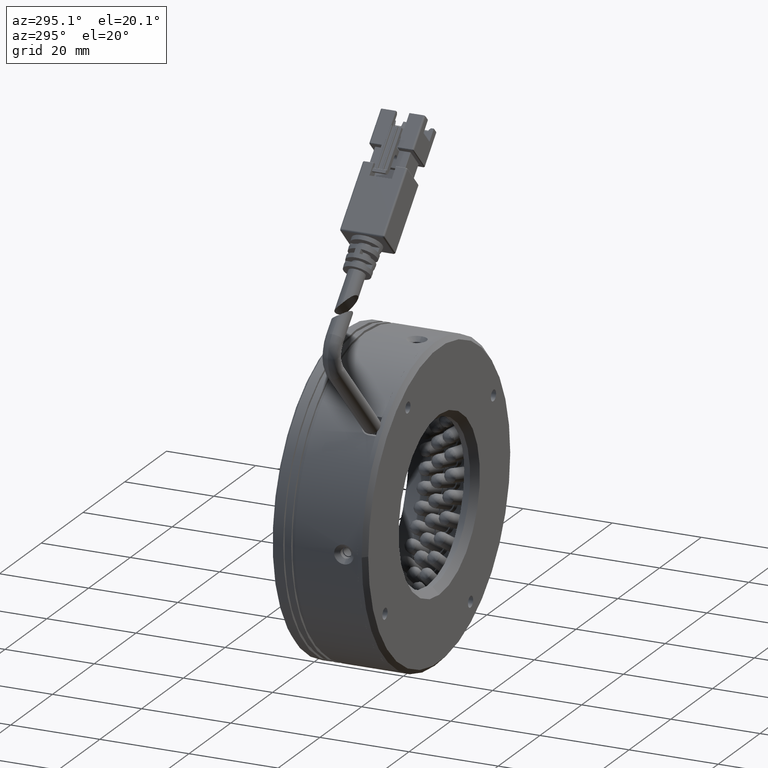
[diagram: clean part render]
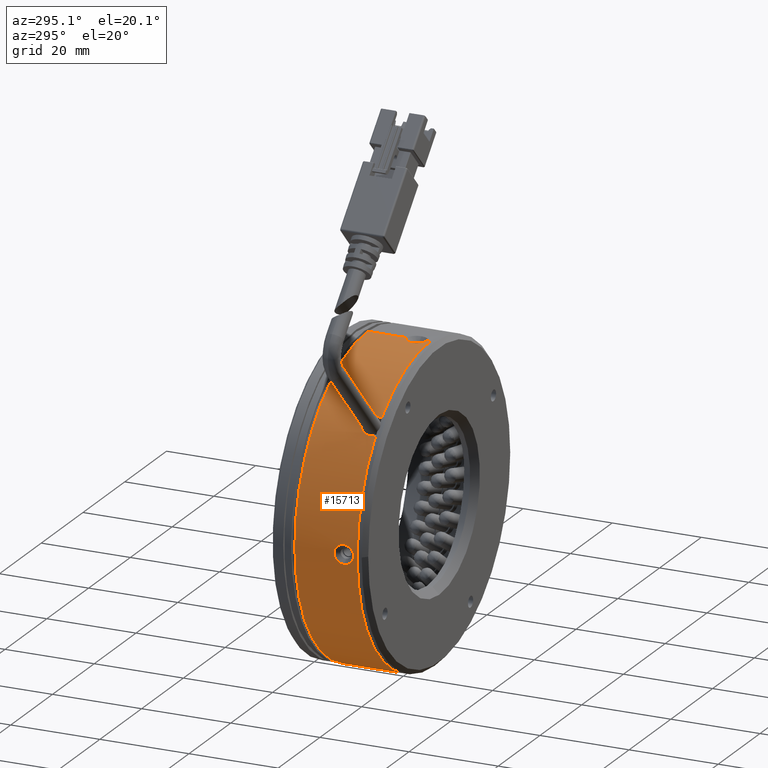
[diagram: same view with one face highlighted and labeled with its STEP entity id]
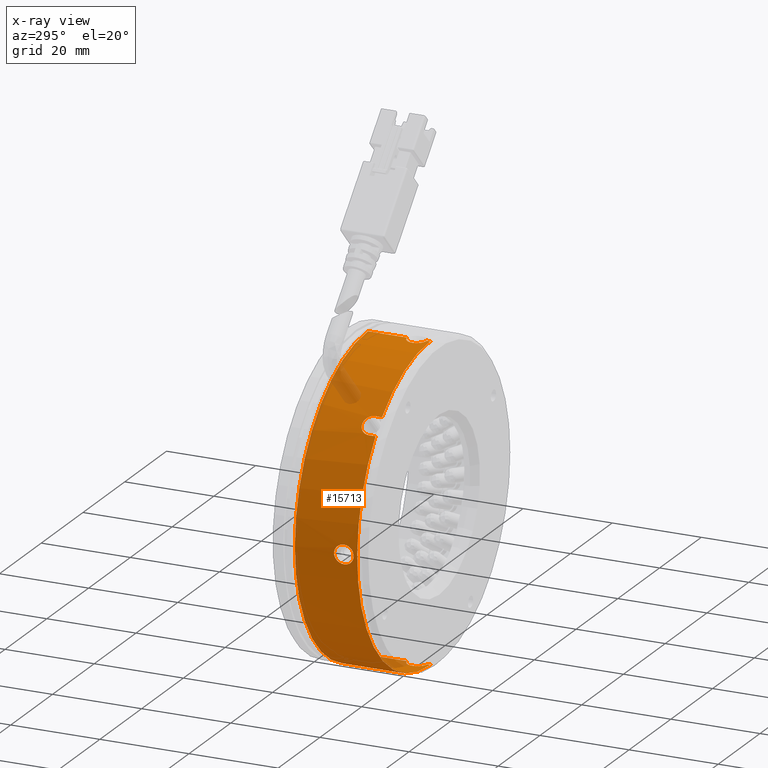
[diagram: x-ray of the same camera — body ghosted, the highlighted face saturated]
A machine part, auxiliary view. The second image highlights one B-rep face of the part: STEP entity #15713.
The next image is the same camera in x-ray: the body ghosted, the highlighted face saturated — about 4% of this face is hidden behind the body in this view.
In plain terms, the highlighted cylindrical surface (partial cylindrical patch) has radius 35 mm, axis along (-0, -1, -0).
Its self-contained STEP definition (entity closure, byte-faithful):
#307 = CIRCLE ( 'NONE', #38883, 35.00000000000000000 ) ;
#2027 = VERTEX_POINT ( 'NONE', #20053 ) ;
#2075 = CARTESIAN_POINT ( 'NONE',  ( -72.17441359463730100, -20.64720504933453800, -14.96197346467865000 ) ) ;
#2096 = CARTESIAN_POINT ( 'NONE',  ( -72.18648179265486000, -23.17893845901557300, -11.48444872106112900 ) ) ;
#2424 = FACE_OUTER_BOUND ( 'NONE', #57819, .T. ) ;
#2437 = CARTESIAN_POINT ( 'NONE',  ( -72.21092947146236400, -19.76496629095659700, -12.14565423040928100 ) ) ;
#2453 = AXIS2_PLACEMENT_3D ( 'NONE', #56706, #8599, #64789 ) ;
#2454 = CARTESIAN_POINT ( 'NONE',  ( -72.19933629333510800, -23.47771404082590500, -14.41495698983122500 ) ) ;
#2468 = AXIS2_PLACEMENT_3D ( 'NONE', #69287, #13562, #61974 ) ;
#2745 = CARTESIAN_POINT ( 'NONE',  ( -38.84195110853836800, -23.17868428264803200, -48.06513385898462300 ) ) ;
#3226 = CARTESIAN_POINT ( 'NONE',  ( -39.14754193227397400, -20.77298257262449300, 21.84470323132021700 ) ) ;
#3754 = CARTESIAN_POINT ( 'NONE',  ( -37.22376356038466100, -10.73693679055960500, -48.10242548495532600 ) ) ;
#3826 = CARTESIAN_POINT ( 'NONE',  ( -63.41989359537929300, -22.62648436212026200, 10.10885547354302400 ) ) ;
#4084 = CARTESIAN_POINT ( 'NONE',  ( -39.09538724856667400, -20.64163448882672100, -48.05250323419785700 ) ) ;
#4180 = CARTESIAN_POINT ( 'NONE',  ( -61.77115033680624400, -21.05066216474871500, 11.84642374056994600 ) ) ;
#4523 = CARTESIAN_POINT ( 'NONE',  ( -60.39311792706755000, -22.90058625625215100, 13.13079438471443400 ) ) ;
#4581 = CARTESIAN_POINT ( 'NONE',  ( -39.35859563401581300, -21.73693679055961100, -48.03725755865213600 ) ) ;
#4617 = VERTEX_POINT ( 'NONE', #67498 ) ;
#4725 = CARTESIAN_POINT ( 'NONE',  ( -37.92225923372046700, -23.82081558900806300, 21.89084473604073000 ) ) ;
#4752 = LINE ( 'NONE', #12790, #23563 ) ;
#5141 = B_SPLINE_CURVE_WITH_KNOTS ( 'NONE', 3,
 ( #17902, #25990, #82035, #34065, #90080, #42131, #98203, #50133, #2096, #58226, #10118, #66318, #18241, #74340, #26332, #82386, #34419, #90420, #42482, #98543, #50486, #2454, #58582, #10483, #66665, #18575, #74689, #26681, #82709, #34769 ),
 .UNSPECIFIED., .F., .F.,
 ( 4, 2, 2, 2, 2, 2, 2, 2, 2, 2, 2, 2, 2, 2, 4 ),
 ( 0.006801280354337099400, 0.007226328082486637900, 0.007651375810636176400, 0.008076423538785714900, 0.008501471266935253400, 0.009351566723234333900, 0.009776614451383877600, 0.01020166217953342100, 0.01062670990768296500, 0.01105175763583251100, 0.01147680536398205200, 0.01190185309213159800, 0.01232690082028114000, 0.01275194854843068500, 0.01360204400472976200 ),
 .UNSPECIFIED. ) ;
#5630 = DIRECTION ( 'NONE',  ( 0.0000000000000000000, 0.0000000000000000000, -1.000000000000000000 ) ) ;
#8599 = DIRECTION ( 'NONE',  ( 0.0000000000000000000, 1.000000000000000000, 0.0000000000000000000 ) ) ;
#9187 = LINE ( 'NONE', #62590, #28086 ) ;
#10100 = CARTESIAN_POINT ( 'NONE',  ( -72.18648179265486000, -20.29493512210366600, -14.72040224884976200 ) ) ;
#10101 = EDGE_CURVE ( 'NONE', #75327, #34255, #29644, .T. ) ;
#10118 = CARTESIAN_POINT ( 'NONE',  ( -72.20782325663832100, -23.65190471292516600, -12.01498249379077500 ) ) ;
#10465 = CARTESIAN_POINT ( 'NONE',  ( -72.19933629333510800, -19.99615954029330600, -11.78989398007965800 ) ) ;
#10483 = CARTESIAN_POINT ( 'NONE',  ( -72.18648156479508800, -23.17898133300633700, -14.72045267900322300 ) ) ;
#10767 = CARTESIAN_POINT ( 'NONE',  ( -38.31161495567856400, -23.65164852666222100, -48.08647185689260100 ) ) ;
#11013 = CIRCLE ( 'NONE', #2453, 35.00000000000000000 ) ;
#11183 = ORIENTED_EDGE ( 'NONE', *, *, #10101, .T. ) ;
#11216 = CARTESIAN_POINT ( 'NONE',  ( -38.93063235117443100, -20.40818297352575400, 21.85601341816057500 ) ) ;
#11820 = CARTESIAN_POINT ( 'NONE',  ( -63.31787781798403400, -22.22783951909080700, 10.22353156421552400 ) ) ;
#12060 = CARTESIAN_POINT ( 'NONE',  ( -39.29202359342004100, -21.17380952898742300, -48.04127219266198500 ) ) ;
#12160 = CARTESIAN_POINT ( 'NONE',  ( -61.47508772277452500, -21.14476724911269300, 12.13426606671402100 ) ) ;
#12526 = CARTESIAN_POINT ( 'NONE',  ( -60.38208398864672700, -23.18693679055961000, 13.14052013747701200 ) ) ;
#12749 = CARTESIAN_POINT ( 'NONE',  ( -38.30506477950060400, -23.63920736627007500, 21.88106210217100800 ) ) ;
#12790 = CARTESIAN_POINT ( 'NONE',  ( -60.38208398864672000, -10.10550973775694800, 13.14052013747701200 ) ) ;
#13023 = VECTOR ( 'NONE', #63215, 1000.000000000000000 ) ;
#13062 = VERTEX_POINT ( 'NONE', #64129 ) ;
#13562 = DIRECTION ( 'NONE',  ( -0.0000000000000000000, -1.000000000000000000, -0.0000000000000000000 ) ) ;
#15117 = CARTESIAN_POINT ( 'NONE',  ( -37.22376356038466100, -10.10550973775694800, -48.10242548495532600 ) ) ;
#15556 = VERTEX_POINT ( 'NONE', #100567 ) ;
#15713 = ADVANCED_FACE ( 'NONE', ( #2424, #45114 ), #35072, .T. ) ;
#15893 = VECTOR ( 'NONE', #23511, 1000.000000000000000 ) ;
#17770 = CARTESIAN_POINT ( 'NONE',  ( -37.22376356038465400, -10.10550973775694800, 21.89757451504468500 ) ) ;
#17884 = CARTESIAN_POINT ( 'NONE',  ( -72.15859563407818200, -21.73693679055961100, -15.23725755864029100 ) ) ;
#17902 = CARTESIAN_POINT ( 'NONE',  ( -72.15859563407819600, -21.73693679055961100, -10.96759341127059500 ) ) ;
#18230 = CARTESIAN_POINT ( 'NONE',  ( -72.20782325663830600, -19.82196886819406200, -14.18986847612012000 ) ) ;
#18241 = CARTESIAN_POINT ( 'NONE',  ( -72.21951787287260100, -23.86414038986979200, -12.53979157595876400 ) ) ;
#18553 = CARTESIAN_POINT ( 'NONE',  ( -72.18648156479511600, -20.29489224811288400, -11.48439829090766500 ) ) ;
#18575 = CARTESIAN_POINT ( 'NONE',  ( -72.17449339993608200, -22.82934489499319500, -14.96047259074914700 ) ) ;
#18645 = EDGE_CURVE ( 'NONE', #74708, #71007, #97765, .T. ) ;
#18750 = VERTEX_POINT ( 'NONE', #35741 ) ;
#18837 = LINE ( 'NONE', #17770, #59020 ) ;
#18845 = CARTESIAN_POINT ( 'NONE',  ( -37.78718050045571900, -23.86394007930558900, -48.09816826886805800 ) ) ;
#19288 = EDGE_CURVE ( 'NONE', #4617, #75763, #4752, .T. ) ;
#19312 = CARTESIAN_POINT ( 'NONE',  ( -38.54970370794844600, -19.98943390663248800, 21.87299322417172600 ) ) ;
#19830 = CARTESIAN_POINT ( 'NONE',  ( -37.36691250540036400, -19.53693679062509500, -48.10242548495533300 ) ) ;
#19922 = CARTESIAN_POINT ( 'NONE',  ( -63.16560618559595500, -21.86996423252865500, 10.39283354219874600 ) ) ;
#20053 = CARTESIAN_POINT ( 'NONE',  ( -37.22376356038466100, -24.73693679055960400, -48.10242548495532600 ) ) ;
#20134 = ORIENTED_EDGE ( 'NONE', *, *, #70124, .T. ) ;
#20171 = CARTESIAN_POINT ( 'NONE',  ( -39.35859563401586300, -21.59390286582536000, -48.03725755865214400 ) ) ;
#20266 = CARTESIAN_POINT ( 'NONE',  ( -61.19195739857615700, -21.31782239801181700, 12.40325299526902800 ) ) ;
#20387 = EDGE_CURVE ( 'NONE', #21367, #4617, #25909, .T. ) ;
#20852 = CARTESIAN_POINT ( 'NONE',  ( -38.64674033459720400, -23.38288011401085200, 21.86877216067218300 ) ) ;
#21367 = VERTEX_POINT ( 'NONE', #59066 ) ;
#22346 = ORIENTED_EDGE ( 'NONE', *, *, #57244, .T. ) ;
#22586 = DIRECTION ( 'NONE',  ( -0.0000000000000000000, -1.000000000000000000, -0.0000000000000000000 ) ) ;
#23005 = EDGE_CURVE ( 'NONE', #80723, #13062, #50048, .T. ) ;
#23511 = DIRECTION ( 'NONE',  ( 0.0000000000000000000, 1.000000000000000000, 0.0000000000000000000 ) ) ;
#23563 = VECTOR ( 'NONE', #37019, 1000.000000000000000 ) ;
#23602 = EDGE_CURVE ( 'NONE', #75763, #15556, #11013, .T. ) ;
#25399 = DIRECTION ( 'NONE',  ( -0.0000000000000000000, -1.000000000000000000, -0.0000000000000000000 ) ) ;
#25433 = ORIENTED_EDGE ( 'NONE', *, *, #46180, .T. ) ;
#25909 = B_SPLINE_CURVE_WITH_KNOTS ( 'NONE', 3,
 ( #35756, #99913, #51840, #3826, #59921, #11820, #67969, #19922, #76017, #28022, #84089, #36098, #92115, #44145, #100248, #52188, #4180, #60267, #12160, #68312, #20266, #76366, #28364, #84447, #36430, #92463, #44487, #100600, #52525, #4523, #60613, #12526 ),
 .UNSPECIFIED., .F., .F.,
 ( 4, 2, 2, 2, 2, 2, 2, 2, 2, 2, 2, 2, 2, 2, 2, 4 ),
 ( 3.469446951953614200E-018, 0.0004232750302415223700, 0.0008465500604830412700, 0.001269825090724560100, 0.001693100120966079100, 0.002539650181449116600, 0.002962925211690648900, 0.003386200241932181600, 0.003809475272173714200, 0.004232750302415246000, 0.004656025332656779100, 0.005079300362898311400, 0.005502575393139844500, 0.005925850423381375800, 0.006349125453622908900, 0.006772400483864441200 ),
 .UNSPECIFIED. ) ;
#25990 = CARTESIAN_POINT ( 'NONE',  ( -72.15859563407821000, -21.88003493872553000, -10.96759341127066500 ) ) ;
#26312 = CARTESIAN_POINT ( 'NONE',  ( -72.21951787287260100, -19.60973319124941800, -13.66505939395210800 ) ) ;
#26332 = CARTESIAN_POINT ( 'NONE',  ( -72.22375430103278400, -23.93678022324023800, -12.95856684094554900 ) ) ;
#26623 = CARTESIAN_POINT ( 'NONE',  ( -39.34516963937911500, -22.02117359424328000, -48.03808553797249200 ) ) ;
#26661 = CARTESIAN_POINT ( 'NONE',  ( -72.17449339993611100, -20.64452868612601900, -11.24437837916172900 ) ) ;
#26681 = CARTESIAN_POINT ( 'NONE',  ( -72.16204772927716200, -22.30695549506004800, -15.18262245712239400 ) ) ;
#26832 = EDGE_CURVE ( 'NONE', #36702, #75327, #96259, .T. ) ;
#26970 = CARTESIAN_POINT ( 'NONE',  ( -37.36693760260142500, -23.93693679049722100, -48.10242548494799300 ) ) ;
#27083 = CARTESIAN_POINT ( 'NONE',  ( -39.35859563401579900, -21.59386895970070000, 21.83240658874150600 ) ) ;
#27414 = CARTESIAN_POINT ( 'NONE',  ( -37.92368686113864100, -19.65360307949746500, 21.89081440042952000 ) ) ;
#27846 = AXIS2_PLACEMENT_3D ( 'NONE', #30141, #86229, #38206 ) ;
#27916 = CARTESIAN_POINT ( 'NONE',  ( -37.78478417546927700, -19.60932852830506700, -48.09820310293105200 ) ) ;
#28022 = CARTESIAN_POINT ( 'NONE',  ( -62.89871526194900000, -21.46354957633663900, 10.68491687128340800 ) ) ;
#28086 = VECTOR ( 'NONE', #22586, 1000.000000000000000 ) ;
#28364 = CARTESIAN_POINT ( 'NONE',  ( -60.93815582973164200, -21.56033681113305900, 12.63933173385570400 ) ) ;
#28907 = CARTESIAN_POINT ( 'NONE',  ( -39.09538724856667400, -22.83223909229244700, 21.84765226428723800 ) ) ;
#29004 = VERTEX_POINT ( 'NONE', #69271 ) ;
#29644 = LINE ( 'NONE', #49212, #69720 ) ;
#30141 = CARTESIAN_POINT ( 'NONE',  ( -37.22376356038466100, -10.73693679055960500, -13.10242548495532100 ) ) ;
#33470 = CARTESIAN_POINT ( 'NONE',  ( -60.38208398864672700, -24.73693679055960400, 13.14052013747700400 ) ) ;
#34065 = CARTESIAN_POINT ( 'NONE',  ( -72.16260842407425000, -22.29991913465412900, -11.03413457653737800 ) ) ;
#34255 = VERTEX_POINT ( 'NONE', #40946 ) ;
#34402 = CARTESIAN_POINT ( 'NONE',  ( -72.22375430103278400, -19.53709335787899800, -13.24628412896535000 ) ) ;
#34419 = CARTESIAN_POINT ( 'NONE',  ( -72.22289348338740900, -23.92236321493013000, -13.38539441595342300 ) ) ;
#34424 = LINE ( 'NONE', #15117, #13023 ) ;
#34707 = CARTESIAN_POINT ( 'NONE',  ( -39.29208258320427700, -22.29980184118386800, -48.04126867576255900 ) ) ;
#34746 = CARTESIAN_POINT ( 'NONE',  ( -72.16204772927714800, -21.16691808605916200, -11.02222851278849600 ) ) ;
#34769 = CARTESIAN_POINT ( 'NONE',  ( -72.15859563407818200, -21.73693679055961100, -15.23725755864029100 ) ) ;
#35072 = CYLINDRICAL_SURFACE ( 'NONE', #2468, 35.00000000000000000 ) ;
#35511 = CARTESIAN_POINT ( 'NONE',  ( -37.50826264832228700, -19.55164704036117100, 21.89669610280887100 ) ) ;
#35741 = CARTESIAN_POINT ( 'NONE',  ( -72.15859563407818200, -21.73693679055961100, -15.23725755864029100 ) ) ;
#35756 = CARTESIAN_POINT ( 'NONE',  ( -63.46670918281704800, -23.18693679055961000, 10.05589494330667200 ) ) ;
#35847 = VERTEX_POINT ( 'NONE', #42717 ) ;
#36012 = CARTESIAN_POINT ( 'NONE',  ( -38.18185526177882100, -19.76574706337418200, -48.08955050626905600 ) ) ;
#36098 = CARTESIAN_POINT ( 'NONE',  ( -62.46222385914966000, -21.14567528577140400, 11.14705329127196600 ) ) ;
#36430 = CARTESIAN_POINT ( 'NONE',  ( -60.71984682048545100, -21.86862348772203600, 12.83866978372840800 ) ) ;
#36511 = EDGE_CURVE ( 'NONE', #34255, #74708, #99148, .T. ) ;
#36702 = VERTEX_POINT ( 'NONE', #86092 ) ;
#36740 = EDGE_CURVE ( 'NONE', #36702, #29004, #9187, .T. ) ;
#36973 = CARTESIAN_POINT ( 'NONE',  ( -39.29202359342004100, -22.30006405213177700, 21.83642122275134100 ) ) ;
#37019 = DIRECTION ( 'NONE',  ( -0.0000000000000000000, -1.000000000000000000, -0.0000000000000000000 ) ) ;
#38206 = DIRECTION ( 'NONE',  ( 0.0000000000000000000, 0.0000000000000000000, -1.000000000000000000 ) ) ;
#38883 = AXIS2_PLACEMENT_3D ( 'NONE', #101742, #53690, #5630 ) ;
#39808 = CARTESIAN_POINT ( 'NONE',  ( -37.22376356038465400, -23.93693679049394900, 21.89757451504468500 ) ) ;
#40946 = CARTESIAN_POINT ( 'NONE',  ( -37.22376356038466100, -19.53693679062502800, -48.10242548495532600 ) ) ;
#41681 = ORIENTED_EDGE ( 'NONE', *, *, #20387, .T. ) ;
#42117 = CARTESIAN_POINT ( 'NONE',  ( -72.16260842407423600, -21.17395444646508600, -15.17071639337350500 ) ) ;
#42131 = CARTESIAN_POINT ( 'NONE',  ( -72.17089713113424000, -22.70108090721028700, -11.17873472184791200 ) ) ;
#42464 = CARTESIAN_POINT ( 'NONE',  ( -72.22289348338740900, -19.55151036618909200, -12.81945655395746400 ) ) ;
#42482 = CARTESIAN_POINT ( 'NONE',  ( -72.21711558241885600, -23.82228406859660200, -13.79705055274044900 ) ) ;
#42717 = CARTESIAN_POINT ( 'NONE',  ( -63.46670918281706300, -24.73693679055960400, 10.05589494330665800 ) ) ;
#42774 = CARTESIAN_POINT ( 'NONE',  ( -39.14754193227398100, -22.70089100849475400, -48.04955420123086200 ) ) ;
#42815 = CARTESIAN_POINT ( 'NONE',  ( -72.15859563407819600, -21.73693679055961100, -10.96759341127059500 ) ) ;
#43242 = CARTESIAN_POINT ( 'NONE',  ( -39.34516963937911500, -21.45269998687595200, 21.83323456806186500 ) ) ;
#43568 = CARTESIAN_POINT ( 'NONE',  ( -37.22376356038465400, -19.53693679062221700, 21.89757451503732000 ) ) ;
#44055 = CARTESIAN_POINT ( 'NONE',  ( -38.53830400992985300, -19.99768084738210700, -48.07792547411334300 ) ) ;
#44145 = CARTESIAN_POINT ( 'NONE',  ( -62.17191088425483500, -21.05049272272526700, 11.44567870108063400 ) ) ;
#44225 = ORIENTED_EDGE ( 'NONE', *, *, #19288, .T. ) ;
#44487 = CARTESIAN_POINT ( 'NONE',  ( -60.54995429406810800, -22.22716761358990200, 12.99148010729247100 ) ) ;
#45042 = CARTESIAN_POINT ( 'NONE',  ( -39.35859563401583500, -21.87997071529385100, 21.83240658874150200 ) ) ;
#45114 = FACE_BOUND ( 'NONE', #88880, .T. ) ;
#46180 = EDGE_CURVE ( 'NONE', #2027, #35847, #307, .T. ) ;
#46750 = EDGE_CURVE ( 'NONE', #80723, #15556, #18837, .T. ) ;
#46955 = ORIENTED_EDGE ( 'NONE', *, *, #36740, .F. ) ;
#47646 = ORIENTED_EDGE ( 'NONE', *, *, #23005, .T. ) ;
#49212 = CARTESIAN_POINT ( 'NONE',  ( -37.22376356038466100, -10.10550973775694800, -48.10242548495532600 ) ) ;
#50048 = B_SPLINE_CURVE_WITH_KNOTS ( 'NONE', 3,
 ( #92670, #76230, #100819, #52748, #4725, #60832, #12749, #68839, #20852, #76915, #28907, #85012, #36973, #93037, #45042, #101184 ),
 .UNSPECIFIED., .F., .F.,
 ( 4, 2, 2, 2, 2, 2, 2, 4 ),
 ( 0.006786052840742668900, 0.007210104708580961400, 0.007634156576419253900, 0.008058208444257546400, 0.008482260312095838900, 0.009330364047772411700, 0.009754415915610692100, 0.01017846778344897400 ),
 .UNSPECIFIED. ) ;
#50118 = CARTESIAN_POINT ( 'NONE',  ( -72.17089713113418300, -20.77279267390894900, -15.02611624806297600 ) ) ;
#50133 = CARTESIAN_POINT ( 'NONE',  ( -72.18221120800826900, -23.06593643704891200, -11.39573436642867700 ) ) ;
#50317 = CARTESIAN_POINT ( 'NONE',  ( -72.15859563407819600, -21.73693679055961100, -10.96759341127059500 ) ) ;
#50427 = ORIENTED_EDGE ( 'NONE', *, *, #60513, .T. ) ;
#50467 = CARTESIAN_POINT ( 'NONE',  ( -72.21711558241889900, -19.65158951252261900, -12.40780041717043300 ) ) ;
#50486 = CARTESIAN_POINT ( 'NONE',  ( -72.20726029983367800, -23.63935705196449900, -14.18334307208186500 ) ) ;
#50792 = CARTESIAN_POINT ( 'NONE',  ( -38.93063235117442400, -23.06569060759352400, -48.06086438807119500 ) ) ;
#51242 = CARTESIAN_POINT ( 'NONE',  ( -39.25184992002358800, -21.03572116801038000, 21.83880509517631900 ) ) ;
#51840 = CARTESIAN_POINT ( 'NONE',  ( -63.45719955681787600, -22.90314248807499800, 10.06668387137813000 ) ) ;
#52097 = CARTESIAN_POINT ( 'NONE',  ( -38.93929322558240400, -20.39695524279627700, -48.06090183398669100 ) ) ;
#52188 = CARTESIAN_POINT ( 'NONE',  ( -61.87326793978870400, -21.03687121118271700, 11.74555070288544700 ) ) ;
#52525 = CARTESIAN_POINT ( 'NONE',  ( -60.43565855911648300, -22.62342447067121800, 13.09316072851225100 ) ) ;
#52748 = CARTESIAN_POINT ( 'NONE',  ( -37.78478417546926200, -23.86454505281397300, 21.89335213302042900 ) ) ;
#53690 = DIRECTION ( 'NONE',  ( 0.0000000000000000000, 1.000000000000000000, 0.0000000000000000000 ) ) ;
#54435 = ORIENTED_EDGE ( 'NONE', *, *, #46750, .F. ) ;
#55516 = ORIENTED_EDGE ( 'NONE', *, *, #18645, .T. ) ;
#56706 = CARTESIAN_POINT ( 'NONE',  ( -37.22376356038466100, -24.73693679055960400, -13.10242548495532100 ) ) ;
#57244 = EDGE_CURVE ( 'NONE', #35847, #21367, #101282, .T. ) ;
#57819 = EDGE_LOOP ( 'NONE', ( #46955, #71073, #11183, #91776, #55516, #67813, #25433, #22346, #41681, #44225, #66219, #54435, #47646, #50427 ) ) ;
#58207 = CARTESIAN_POINT ( 'NONE',  ( -72.18221120800826900, -20.40793714407030600, -14.80911660348220800 ) ) ;
#58226 = CARTESIAN_POINT ( 'NONE',  ( -72.19919487424323300, -23.48470876480094900, -11.77680698778632400 ) ) ;
#58557 = CARTESIAN_POINT ( 'NONE',  ( -72.20726029983364900, -19.83451652915473300, -12.02150789782902700 ) ) ;
#58582 = CARTESIAN_POINT ( 'NONE',  ( -72.19501834864802000, -23.38420782504768900, -14.52404455874787800 ) ) ;
#58854 = CARTESIAN_POINT ( 'NONE',  ( -38.54970370794845300, -23.48443967448682600, -48.07784419408235300 ) ) ;
#59020 = VECTOR ( 'NONE', #81906, 1000.000000000000000 ) ;
#59066 = CARTESIAN_POINT ( 'NONE',  ( -63.46670918281704800, -23.18693679055961000, 10.05589494330667200 ) ) ;
#59329 = CARTESIAN_POINT ( 'NONE',  ( -39.08342530106762800, -20.64741546415481100, 21.84821842645350300 ) ) ;
#59824 = CARTESIAN_POINT ( 'NONE',  ( -37.22376356038466100, -19.53693679062502800, -48.10242548495532600 ) ) ;
#59921 = CARTESIAN_POINT ( 'NONE',  ( -63.39161402612113200, -22.48902644992799100, 10.14078154745030800 ) ) ;
#60169 = CARTESIAN_POINT ( 'NONE',  ( -39.25181313723114600, -21.03561704515745100, -48.04365818202710900 ) ) ;
#60267 = CARTESIAN_POINT ( 'NONE',  ( -61.57245067993877500, -21.10473217463752200, 12.04038085768050700 ) ) ;
#60513 = EDGE_CURVE ( 'NONE', #13062, #29004, #68264, .T. ) ;
#60613 = CARTESIAN_POINT ( 'NONE',  ( -60.38208664764511000, -23.04381150168661200, 13.14051779102027100 ) ) ;
#60832 = CARTESIAN_POINT ( 'NONE',  ( -38.18185526177880000, -23.70812651774490500, 21.88469953635841100 ) ) ;
#61974 = DIRECTION ( 'NONE',  ( 0.0000000000000000000, 0.0000000000000000000, -1.000000000000000000 ) ) ;
#62590 = CARTESIAN_POINT ( 'NONE',  ( -37.22376356038465400, -10.10550973775694800, 21.89757451504468500 ) ) ;
#63215 = DIRECTION ( 'NONE',  ( -0.0000000000000000000, -1.000000000000000000, -0.0000000000000000000 ) ) ;
#64129 = CARTESIAN_POINT ( 'NONE',  ( -39.35859563401581300, -21.73693679055961100, 21.83240658874149900 ) ) ;
#64789 = DIRECTION ( 'NONE',  ( 0.0000000000000000000, 0.0000000000000000000, -1.000000000000000000 ) ) ;
#65955 = CARTESIAN_POINT ( 'NONE',  ( -72.15859563407821000, -21.59383864239477500, -15.23725755864028200 ) ) ;
#66219 = ORIENTED_EDGE ( 'NONE', *, *, #23602, .T. ) ;
#66300 = CARTESIAN_POINT ( 'NONE',  ( -72.19919487424317600, -19.98916481631826200, -14.42804398212456000 ) ) ;
#66318 = CARTESIAN_POINT ( 'NONE',  ( -72.21701431307141700, -23.82046390665523500, -12.40303787274934400 ) ) ;
#66649 = CARTESIAN_POINT ( 'NONE',  ( -72.19501834864802000, -20.08966575607153300, -11.68080641116300100 ) ) ;
#66665 = CARTESIAN_POINT ( 'NONE',  ( -72.18228372277613400, -23.06792948113492200, -14.80763028800083500 ) ) ;
#66962 = CARTESIAN_POINT ( 'NONE',  ( -37.92368686113866300, -23.82027050162193000, -48.09566537034015700 ) ) ;
#67060 = VERTEX_POINT ( 'NONE', #50317 ) ;
#67399 = CARTESIAN_POINT ( 'NONE',  ( -38.84195110853834600, -20.29518929847126400, 21.86028288907399600 ) ) ;
#67498 = CARTESIAN_POINT ( 'NONE',  ( -60.38208398864672700, -23.18693679055961000, 13.14052013747701200 ) ) ;
#67813 = ORIENTED_EDGE ( 'NONE', *, *, #89564, .T. ) ;
#67969 = CARTESIAN_POINT ( 'NONE',  ( -63.27270425272988100, -22.10405653799697800, 10.27403884032229100 ) ) ;
#68224 = CARTESIAN_POINT ( 'NONE',  ( -39.34517581350775100, -21.45268504110900300, -48.03808518791749500 ) ) ;
#68264 = B_SPLINE_CURVE_WITH_KNOTS ( 'NONE', 3,
 ( #83129, #27083, #43242, #99296, #51242, #3226, #59329, #11216, #67399, #19312, #75420, #27414, #83487, #35511, #91524, #43568 ),
 .UNSPECIFIED., .F., .F.,
 ( 4, 2, 2, 2, 2, 2, 2, 4 ),
 ( 0.01017846778344897400, 0.01060262017258143200, 0.01102677256171389000, 0.01145092495084634700, 0.01187507733997880500, 0.01272338211824372900, 0.01314753450737617800, 0.01357168689650862900 ),
 .UNSPECIFIED. ) ;
#68312 = CARTESIAN_POINT ( 'NONE',  ( -61.28459419532737200, -21.25126257938271500, 12.31594883875027500 ) ) ;
#68839 = CARTESIAN_POINT ( 'NONE',  ( -38.53830400992985300, -23.47619273373700100, 21.87307450420270200 ) ) ;
#69271 = CARTESIAN_POINT ( 'NONE',  ( -37.22376356038465400, -19.53693679062221700, 21.89757451503732000 ) ) ;
#69287 = CARTESIAN_POINT ( 'NONE',  ( -37.22376356038466100, -10.10550973775694800, -13.10242548495532100 ) ) ;
#69720 = VECTOR ( 'NONE', #25399, 1000.000000000000000 ) ;
#70124 = EDGE_CURVE ( 'NONE', #18750, #67060, #85096, .T. ) ;
#71007 = VERTEX_POINT ( 'NONE', #78672 ) ;
#71073 = ORIENTED_EDGE ( 'NONE', *, *, #26832, .T. ) ;
#71504 = CARTESIAN_POINT ( 'NONE',  ( -63.46670918281706300, -10.10550973775694800, 10.05589494330666500 ) ) ;
#71658 = EDGE_CURVE ( 'NONE', #67060, #18750, #5141, .T. ) ;
#74320 = CARTESIAN_POINT ( 'NONE',  ( -72.21701431307143100, -19.65340967446399400, -13.80181309716154400 ) ) ;
#74340 = CARTESIAN_POINT ( 'NONE',  ( -72.22288607844613800, -23.92224114826604600, -12.81817246158397700 ) ) ;
#74637 = CARTESIAN_POINT ( 'NONE',  ( -39.35859563401579900, -21.88000462141851100, -48.03725755865214400 ) ) ;
#74675 = CARTESIAN_POINT ( 'NONE',  ( -72.18228372277616200, -20.40594409998430000, -11.39722068191005100 ) ) ;
#74689 = CARTESIAN_POINT ( 'NONE',  ( -72.17089672165334900, -22.70106197496271600, -15.02612344354467800 ) ) ;
#74708 = VERTEX_POINT ( 'NONE', #4581 ) ;
#74975 = CARTESIAN_POINT ( 'NONE',  ( -37.50826264832232900, -23.92222654075826000, -48.10154707271952600 ) ) ;
#75327 = VERTEX_POINT ( 'NONE', #3754 ) ;
#75420 = CARTESIAN_POINT ( 'NONE',  ( -38.31161495567853600, -19.82222505445712100, 21.88162088698194900 ) ) ;
#75763 = VERTEX_POINT ( 'NONE', #33470 ) ;
#75927 = CARTESIAN_POINT ( 'NONE',  ( -37.50771075228001200, -19.55163702838384100, -48.10154789123254900 ) ) ;
#76017 = CARTESIAN_POINT ( 'NONE',  ( -63.10334919014333400, -21.75970732235944300, 10.46147164486238700 ) ) ;
#76230 = CARTESIAN_POINT ( 'NONE',  ( -37.36691250539988800, -23.93693679049393100, 21.89757451504468100 ) ) ;
#76270 = CARTESIAN_POINT ( 'NONE',  ( -39.35859563401581300, -21.73693679055961100, -48.03725755865213600 ) ) ;
#76366 = CARTESIAN_POINT ( 'NONE',  ( -61.01926810152916400, -21.47209980179826500, 12.56443864438607100 ) ) ;
#76915 = CARTESIAN_POINT ( 'NONE',  ( -38.93929322558239600, -23.07691833832288700, 21.85605086407608500 ) ) ;
#78672 = CARTESIAN_POINT ( 'NONE',  ( -37.22376356038466100, -23.93693679049722800, -48.10242548494798600 ) ) ;
#80723 = VERTEX_POINT ( 'NONE', #39808 ) ;
#81906 = DIRECTION ( 'NONE',  ( -0.0000000000000000000, -1.000000000000000000, -0.0000000000000000000 ) ) ;
#82035 = CARTESIAN_POINT ( 'NONE',  ( -72.15942396432168900, -22.02123343144859300, -10.98102504383183500 ) ) ;
#82367 = CARTESIAN_POINT ( 'NONE',  ( -72.22288607844613800, -19.55163243285318600, -13.38667850832691600 ) ) ;
#82386 = CARTESIAN_POINT ( 'NONE',  ( -72.22377267242414700, -23.93709086694159200, -13.24174279207660900 ) ) ;
#82662 = CARTESIAN_POINT ( 'NONE',  ( -39.35859563401581300, -21.73693679055961100, -48.03725755865213600 ) ) ;
#82696 = CARTESIAN_POINT ( 'NONE',  ( -72.17089672165334900, -20.77281160615650500, -11.17872752636620800 ) ) ;
#82709 = CARTESIAN_POINT ( 'NONE',  ( -72.15859563407822500, -22.02311134410741300, -15.23725755864028700 ) ) ;
#83009 = CARTESIAN_POINT ( 'NONE',  ( -37.22376356038466100, -23.93693679049722800, -48.10242548494798600 ) ) ;
#83129 = CARTESIAN_POINT ( 'NONE',  ( -39.35859563401581300, -21.73693679055961100, 21.83240658874149900 ) ) ;
#83487 = CARTESIAN_POINT ( 'NONE',  ( -37.78718050045569800, -19.60993350181382800, 21.89331729895741700 ) ) ;
#83988 = CARTESIAN_POINT ( 'NONE',  ( -37.92225923372048200, -19.65305799211099100, -48.09569570595137800 ) ) ;
#84089 = CARTESIAN_POINT ( 'NONE',  ( -62.73295926011513000, -21.30475847788848800, 10.86316091381639400 ) ) ;
#84447 = CARTESIAN_POINT ( 'NONE',  ( -60.78727205667542000, -21.76012516140734100, 12.77751912012268300 ) ) ;
#85012 = CARTESIAN_POINT ( 'NONE',  ( -39.25181313723115300, -22.43825653596173800, 21.83880721211647800 ) ) ;
#85096 = B_SPLINE_CURVE_WITH_KNOTS ( 'NONE', 3,
 ( #17884, #65955, #90066, #42117, #98184, #50118, #2075, #58207, #10100, #66300, #18230, #74320, #26312, #82367, #34402, #90406, #42464, #98526, #50467, #2437, #58557, #10465, #66649, #18553, #74675, #26661, #82696, #34746, #90756, #42815 ),
 .UNSPECIFIED., .F., .F.,
 ( 4, 2, 2, 2, 2, 2, 2, 2, 2, 2, 2, 2, 2, 2, 4 ),
 ( 0.0000000000000000000, 0.0004250800221460684400, 0.0008501600442921368900, 0.001275240066438205400, 0.001700320088584273800, 0.002550480132876414200, 0.002975560155022483100, 0.003400640177168551000, 0.003825720199314619800, 0.004250800221460688200, 0.004675880243606756600, 0.005100960265752824100, 0.005526040287898893400, 0.005951120310044961800, 0.006801280354337099400 ),
 .UNSPECIFIED. ) ;
#86092 = CARTESIAN_POINT ( 'NONE',  ( -37.22376356038465400, -10.73693679055960500, 21.89757451504468500 ) ) ;
#86229 = DIRECTION ( 'NONE',  ( -0.0000000000000000000, -1.000000000000000000, -0.0000000000000000000 ) ) ;
#88880 = EDGE_LOOP ( 'NONE', ( #93563, #20134 ) ) ;
#89564 = EDGE_CURVE ( 'NONE', #71007, #2027, #34424, .T. ) ;
#90066 = CARTESIAN_POINT ( 'NONE',  ( -72.15942396432167500, -21.45264014967063200, -15.22382592607904600 ) ) ;
#90080 = CARTESIAN_POINT ( 'NONE',  ( -72.16499678584074200, -22.43829656751779600, -11.07438415200388200 ) ) ;
#90406 = CARTESIAN_POINT ( 'NONE',  ( -72.22377267242411800, -19.53678271417762600, -12.96310817783427000 ) ) ;
#90420 = CARTESIAN_POINT ( 'NONE',  ( -72.21955972410486900, -23.86486789755669200, -13.66226264921260400 ) ) ;
#90710 = CARTESIAN_POINT ( 'NONE',  ( -39.25184992002360200, -22.43815241310885600, -48.04365606508695000 ) ) ;
#90756 = CARTESIAN_POINT ( 'NONE',  ( -72.15859563407819600, -21.45071874979721100, -10.96759341127045700 ) ) ;
#91524 = CARTESIAN_POINT ( 'NONE',  ( -37.36693760260140400, -19.53693679062221700, 21.89757451503732400 ) ) ;
#91776 = ORIENTED_EDGE ( 'NONE', *, *, #36511, .T. ) ;
#92018 = CARTESIAN_POINT ( 'NONE',  ( -38.30506477950064000, -19.83466621484901200, -48.08591307208164500 ) ) ;
#92115 = CARTESIAN_POINT ( 'NONE',  ( -62.36686726495298700, -21.10478920740880300, 11.24595865287460100 ) ) ;
#92463 = CARTESIAN_POINT ( 'NONE',  ( -60.60145859948127600, -22.10135303487812700, 12.94540987546400500 ) ) ;
#92670 = CARTESIAN_POINT ( 'NONE',  ( -37.22376356038465400, -23.93693679049394900, 21.89757451504468500 ) ) ;
#93037 = CARTESIAN_POINT ( 'NONE',  ( -39.34517581350775800, -22.02118854001020100, 21.83323421800685100 ) ) ;
#93563 = ORIENTED_EDGE ( 'NONE', *, *, #71658, .T. ) ;
#96259 = CIRCLE ( 'NONE', #27846, 35.00000000000000000 ) ;
#97765 = B_SPLINE_CURVE_WITH_KNOTS ( 'NONE', 3,
 ( #82662, #74637, #26623, #34707, #90710, #42774, #98835, #50792, #2745, #58854, #10767, #66962, #18845, #74975, #26970, #83009 ),
 .UNSPECIFIED., .F., .F.,
 ( 4, 2, 2, 2, 2, 2, 2, 4 ),
 ( 0.01017846778345028000, 0.01060262017258274900, 0.01102677256171521800, 0.01145092495084768700, 0.01187507733998015600, 0.01272338211824509300, 0.01314753450737757500, 0.01357168689651005500 ),
 .UNSPECIFIED. ) ;
#98184 = CARTESIAN_POINT ( 'NONE',  ( -72.16499678584072800, -21.03557701360143600, -15.13046681790700600 ) ) ;
#98203 = CARTESIAN_POINT ( 'NONE',  ( -72.17441359463734300, -22.82666853178469800, -11.24287750523224400 ) ) ;
#98526 = CARTESIAN_POINT ( 'NONE',  ( -72.21955972410485500, -19.60900568356251800, -12.54258832069828800 ) ) ;
#98543 = CARTESIAN_POINT ( 'NONE',  ( -72.21092947146233600, -23.70890729016263200, -14.05919673950158500 ) ) ;
#98835 = CARTESIAN_POINT ( 'NONE',  ( -39.08342530106762100, -22.82645811696445300, -48.05306939636411600 ) ) ;
#99148 = B_SPLINE_CURVE_WITH_KNOTS ( 'NONE', 3,
 ( #59824, #19830, #75927, #27916, #83988, #36012, #92018, #44055, #100154, #52097, #4084, #60169, #12060, #68224, #20171, #76270 ),
 .UNSPECIFIED., .F., .F.,
 ( 4, 2, 2, 2, 2, 2, 2, 4 ),
 ( 0.006786052840743859800, 0.007210104708582166200, 0.007634156576420471700, 0.008058208444258778100, 0.008482260312097084400, 0.009330364047773681600, 0.009754415915611981000, 0.01017846778345028000 ),
 .UNSPECIFIED. ) ;
#99296 = CARTESIAN_POINT ( 'NONE',  ( -39.29208258320425500, -21.17407173993537500, 21.83641770585191800 ) ) ;
#99913 = CARTESIAN_POINT ( 'NONE',  ( -63.46670668935083600, -23.04381623783286800, 10.05589776889578800 ) ) ;
#100154 = CARTESIAN_POINT ( 'NONE',  ( -38.64674033459721900, -20.09099346710828000, -48.07362313058281700 ) ) ;
#100248 = CARTESIAN_POINT ( 'NONE',  ( -62.07319593178989700, -21.03700290820240700, 11.54561089932319900 ) ) ;
#100567 = CARTESIAN_POINT ( 'NONE',  ( -37.22376356038465400, -24.73693679055960400, 21.89757451504468500 ) ) ;
#100600 = CARTESIAN_POINT ( 'NONE',  ( -60.46704248962336000, -22.48873220437680900, 13.06536134960385800 ) ) ;
#100819 = CARTESIAN_POINT ( 'NONE',  ( -37.50771075228000500, -23.92223655273517100, 21.89669692132190800 ) ) ;
#101184 = CARTESIAN_POINT ( 'NONE',  ( -39.35859563401581300, -21.73693679055961100, 21.83240658874149900 ) ) ;
#101282 = LINE ( 'NONE', #71504, #15893 ) ;
#101742 = CARTESIAN_POINT ( 'NONE',  ( -37.22376356038466100, -24.73693679055960400, -13.10242548495532100 ) ) ;